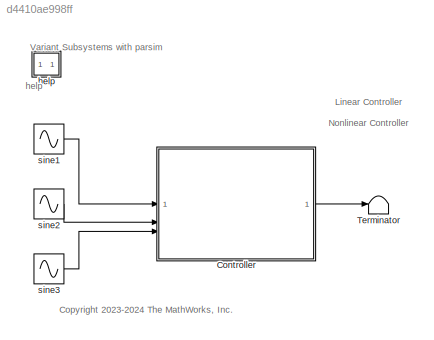
MODEL slx_d4410ae998ff
KIND model
CONFIG AbsTol = auto
CONFIG EnableMultiTasking = on
CONFIG FixedStep = auto
CONFIG MaxStep = auto
CONFIG MinStep = auto
CONFIG PreLoadFcn = VSS_MODE = Simulink.Parameter(int32(1));\nVSS_MODE.StorageClass = 'ExportedGlobal';
CONFIG RelTol = 1e-3
CONFIG SampleTimeConstraint = Unconstrained
CONFIG SolverName = FixedStepAuto
CONFIG StartFcn = tic;
CONFIG StartTime = 0.0
CONFIG StopFcn = toc
CONFIG StopTime = 100000
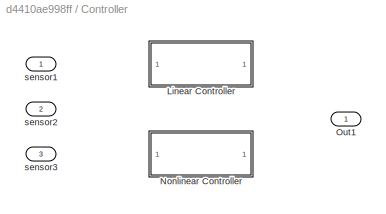
BLOCK [SubSystem] Controller
  Variant = on
  VariantActivationTime = startup
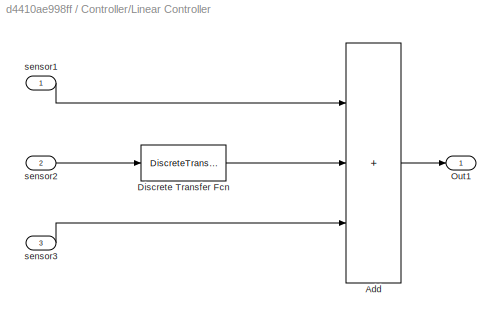
BLOCK [SubSystem] Controller/Linear Controller
  TreatAsAtomicUnit = on
  VariantControl = VSS_MODE==1
BLOCK [Sum] Controller/Linear Controller/Add
  IconShape = rectangular
  Inputs = +++
BLOCK [DiscreteTransferFcn] Controller/Linear Controller/Discrete Transfer Fcn
  Denominator = [1 .09 0.5]
  InputPortMap = u0
  Numerator = [1 .7]
  SampleTime = .01
BLOCK [Outport] Controller/Linear Controller/Out1
  VectorParamsAs1DForOutWhenUnconnected = off
BLOCK [Inport] Controller/Linear Controller/sensor1
BLOCK [Inport] Controller/Linear Controller/sensor2
  Port = 2
BLOCK [Inport] Controller/Linear Controller/sensor3
  Port = 3
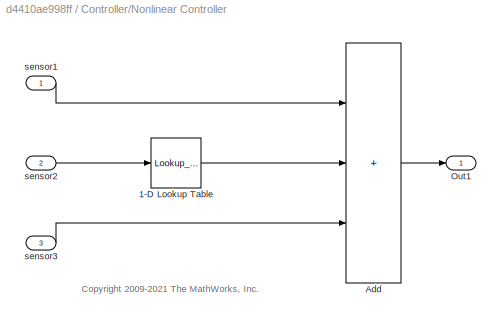
BLOCK [SubSystem] Controller/Nonlinear Controller
  TreatAsAtomicUnit = on
  VariantControl = VSS_MODE==2
BLOCK [Lookup_n-D] Controller/Nonlinear Controller/1-D Lookup Table
  BreakpointsForDimension1 = [-5:5]
  InputPortMap = u0
  NumberOfTableDimensions = 1
  Table = tanh([-5:5])
BLOCK [Sum] Controller/Nonlinear Controller/Add
  IconShape = rectangular
  Inputs = +++
BLOCK [Outport] Controller/Nonlinear Controller/Out1
  VectorParamsAs1DForOutWhenUnconnected = off
BLOCK [Inport] Controller/Nonlinear Controller/sensor1
BLOCK [Inport] Controller/Nonlinear Controller/sensor2
  Port = 2
BLOCK [Inport] Controller/Nonlinear Controller/sensor3
  Port = 3
BLOCK [Outport] Controller/Out1
  VectorParamsAs1DForOutWhenUnconnected = off
BLOCK [Inport] Controller/sensor1
BLOCK [Inport] Controller/sensor2
  Port = 2
BLOCK [Inport] Controller/sensor3
  Port = 3
BLOCK [Terminator] Terminator
BLOCK [SubSystem] help
BLOCK [Sin] sine1
  Amplitude = .1
  Frequency = pi/3
  SampleTime = .01
BLOCK [Sin] sine2
  Amplitude = 2
  SampleTime = .01
BLOCK [Sin] sine3
  Amplitude = .3
  Frequency = pi/6
  SampleTime = .01
ANNOTATION (root): Variant Subsystems with parsim
ANNOTATION (root): help
ANNOTATION (root): <copyright redacted>
ANNOTATION (root): Linear Controller
ANNOTATION (root): Nonlinear Controller
ANNOTATION Controller/Nonlinear Controller: <copyright redacted>
ANNOTATION help: This example illustrates how Variant Subsystem with startup activation can be simulated using parsim. Open slexVariantSubsystemsWithParSim_script.m to run each steps. Step 1 % setup the active variant selection for each variant choice % and set the number of simulation run equal to the variant selections mdl = 'slexVariantSubsystemsWithParSim' ; numSims = 2; varControl = [1,2]; Step 2 % create the...<+654ch>
LINE Controller/Linear Controller/Add:1 -> Controller/Linear Controller/Out1:1
LINE Controller/Linear Controller/Discrete Transfer Fcn:1 -> Controller/Linear Controller/Add:2
LINE Controller/Linear Controller/sensor1:1 -> Controller/Linear Controller/Add:1
LINE Controller/Linear Controller/sensor2:1 -> Controller/Linear Controller/Discrete Transfer Fcn:1
LINE Controller/Linear Controller/sensor3:1 -> Controller/Linear Controller/Add:3
LINE Controller/Nonlinear Controller/1-D Lookup Table:1 -> Controller/Nonlinear Controller/Add:2
LINE Controller/Nonlinear Controller/Add:1 -> Controller/Nonlinear Controller/Out1:1
LINE Controller/Nonlinear Controller/sensor1:1 -> Controller/Nonlinear Controller/Add:1
LINE Controller/Nonlinear Controller/sensor2:1 -> Controller/Nonlinear Controller/1-D Lookup Table:1
LINE Controller/Nonlinear Controller/sensor3:1 -> Controller/Nonlinear Controller/Add:3
LINE Controller:1 -> Terminator:1
LINE sine1:1 -> Controller:1
LINE sine2:1 -> Controller:2
LINE sine3:1 -> Controller:3
